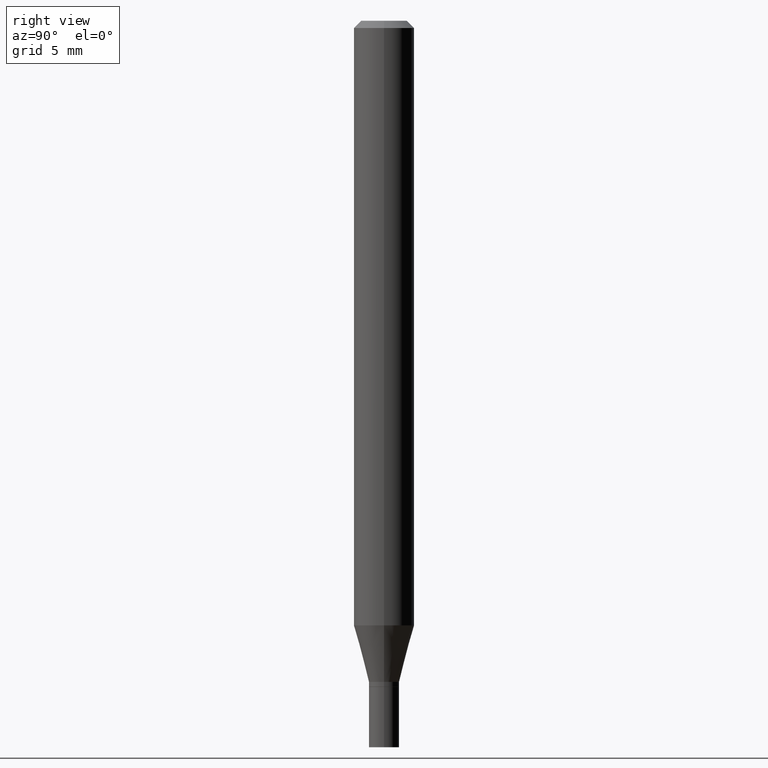
[diagram: clean part render]
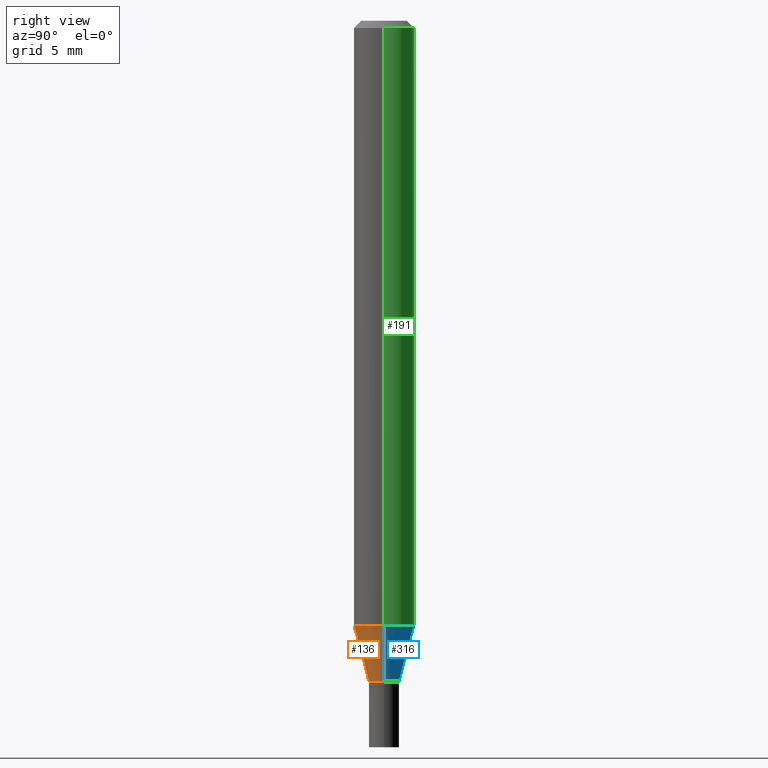
[diagram: same view with three faces highlighted in distinct colors, each labeled with its STEP entity id]
A machine part, right view with three faces highlighted in distinct colors.
Their STEP definitions:

[orange] entity #136 — the highlighted conical surface has half-angle 15 deg.
#9 = AXIS2_PLACEMENT_3D ( 'NONE', #161, #16, #341 ) ;
#12 = CARTESIAN_POINT ( 'NONE',  ( -0.03124999999999966693, -4.229205342785826785E-15, -1.364999999999999991 ) ) ;
#16 = DIRECTION ( 'NONE',  ( -2.445468806185136597E-29, 3.491481338843145583E-15, 1.000000000000000000 ) ) ;
#24 = CARTESIAN_POINT ( 'NONE',  ( 0.03124999999999966693, -4.984089611198587537E-15, -1.364999999999999991 ) ) ;
#32 = DIRECTION ( 'NONE',  ( -0.2588190451025215166, 5.211531920934551042E-15, 0.9659258262890679791 ) ) ;
#36 = EDGE_CURVE ( 'NONE', #49, #143, #144, .T. ) ;
#41 = CARTESIAN_POINT ( 'NONE',  ( 3.052858238161217332E-29, -4.358672472825852637E-15, -1.248373412263471760 ) ) ;
#49 = VERTEX_POINT ( 'NONE', #12 ) ;
#51 = CARTESIAN_POINT ( 'NONE',  ( 3.338064920442711836E-29, -4.765872027520893280E-15, -1.364999999999999991 ) ) ;
#57 = VERTEX_POINT ( 'NONE', #63 ) ;
#63 = CARTESIAN_POINT ( 'NONE',  ( 0.06250000000000000000, -4.795107640181243517E-15, -1.248373412263471760 ) ) ;
#72 = VECTOR ( 'NONE', #32, 39.37007874015748143 ) ;
#78 = ORIENTED_EDGE ( 'NONE', *, *, #349, .F. ) ;
#89 = AXIS2_PLACEMENT_3D ( 'NONE', #41, #179, #329 ) ;
#136 = ADVANCED_FACE ( 'NONE', ( #305 ), #277, .T. ) ;
#143 = VERTEX_POINT ( 'NONE', #24 ) ;
#144 = CIRCLE ( 'NONE', #232, 0.03124999999999966693 ) ;
#153 = CIRCLE ( 'NONE', #89, 0.06250000000000000000 ) ;
#161 = CARTESIAN_POINT ( 'NONE',  ( 3.338064920442711836E-29, -4.765872027520893280E-15, -1.364999999999999991 ) ) ;
#164 = CARTESIAN_POINT ( 'NONE',  ( -0.03124999999999966693, -4.543827422595864339E-15, -1.364999999999999991 ) ) ;
#173 = ORIENTED_EDGE ( 'NONE', *, *, #36, .T. ) ;
#179 = DIRECTION ( 'NONE',  ( -2.445468806185136597E-29, 3.491481338843145583E-15, 1.000000000000000000 ) ) ;
#184 = DIRECTION ( 'NONE',  ( -2.445468806185136597E-29, 3.491481338843145583E-15, 1.000000000000000000 ) ) ;
#187 = ORIENTED_EDGE ( 'NONE', *, *, #299, .F. ) ;
#194 = DIRECTION ( 'NONE',  ( 1.000000000000000000, -6.982962677686274599E-15, 0.000000000000000000 ) ) ;
#199 = VECTOR ( 'NONE', #237, 39.37007874015748143 ) ;
#209 = ORIENTED_EDGE ( 'NONE', *, *, #212, .T. ) ;
#212 = EDGE_CURVE ( 'NONE', #143, #57, #462, .T. ) ;
#232 = AXIS2_PLACEMENT_3D ( 'NONE', #51, #184, #194 ) ;
#237 = DIRECTION ( 'NONE',  ( 0.2588190451025215166, 1.565188264969620784E-15, 0.9659258262890679791 ) ) ;
#247 = LINE ( 'NONE', #164, #72 ) ;
#277 = CONICAL_SURFACE ( 'NONE', #9, 0.03124999999999966693, 0.2617993877991502405 ) ;
#299 = EDGE_CURVE ( 'NONE', #49, #413, #247, .T. ) ;
#305 = FACE_OUTER_BOUND ( 'NONE', #389, .T. ) ;
#327 = CARTESIAN_POINT ( 'NONE',  ( -0.06250000000000000000, -3.914583262975789231E-15, -1.248373412263471760 ) ) ;
#329 = DIRECTION ( 'NONE',  ( 1.000000000000000000, -6.982962677686270655E-15, 0.000000000000000000 ) ) ;
#341 = DIRECTION ( 'NONE',  ( 1.000000000000000000, -6.982962677686274599E-15, 0.000000000000000000 ) ) ;
#349 = EDGE_CURVE ( 'NONE', #413, #57, #153, .T. ) ;
#353 = CARTESIAN_POINT ( 'NONE',  ( 0.03124999999999966693, -4.984089611198587537E-15, -1.364999999999999991 ) ) ;
#389 = EDGE_LOOP ( 'NONE', ( #187, #173, #209, #78 ) ) ;
#413 = VERTEX_POINT ( 'NONE', #327 ) ;
#462 = LINE ( 'NONE', #353, #199 ) ;

[blue] entity #316 — the highlighted conical surface has half-angle 15 deg.
#12 = CARTESIAN_POINT ( 'NONE',  ( -0.03124999999999966693, -4.229205342785826785E-15, -1.364999999999999991 ) ) ;
#24 = CARTESIAN_POINT ( 'NONE',  ( 0.03124999999999966693, -4.984089611198587537E-15, -1.364999999999999991 ) ) ;
#30 = FACE_OUTER_BOUND ( 'NONE', #216, .T. ) ;
#32 = DIRECTION ( 'NONE',  ( -0.2588190451025215166, 5.211531920934551042E-15, 0.9659258262890679791 ) ) ;
#49 = VERTEX_POINT ( 'NONE', #12 ) ;
#57 = VERTEX_POINT ( 'NONE', #63 ) ;
#63 = CARTESIAN_POINT ( 'NONE',  ( 0.06250000000000000000, -4.795107640181243517E-15, -1.248373412263471760 ) ) ;
#67 = CONICAL_SURFACE ( 'NONE', #176, 0.03124999999999966693, 0.2617993877991502405 ) ;
#72 = VECTOR ( 'NONE', #32, 39.37007874015748143 ) ;
#77 = DIRECTION ( 'NONE',  ( 1.000000000000000000, -6.982962677686270655E-15, 0.000000000000000000 ) ) ;
#87 = AXIS2_PLACEMENT_3D ( 'NONE', #429, #344, #110 ) ;
#88 = EDGE_CURVE ( 'NONE', #143, #49, #263, .T. ) ;
#93 = EDGE_CURVE ( 'NONE', #57, #413, #383, .T. ) ;
#105 = DIRECTION ( 'NONE',  ( -2.445468806185136597E-29, 3.491481338843145583E-15, 1.000000000000000000 ) ) ;
#110 = DIRECTION ( 'NONE',  ( 1.000000000000000000, -6.982962677686274599E-15, 0.000000000000000000 ) ) ;
#137 = DIRECTION ( 'NONE',  ( -2.445468806185136597E-29, 3.491481338843145583E-15, 1.000000000000000000 ) ) ;
#143 = VERTEX_POINT ( 'NONE', #24 ) ;
#164 = CARTESIAN_POINT ( 'NONE',  ( -0.03124999999999966693, -4.543827422595864339E-15, -1.364999999999999991 ) ) ;
#176 = AXIS2_PLACEMENT_3D ( 'NONE', #314, #137, #279 ) ;
#199 = VECTOR ( 'NONE', #237, 39.37007874015748143 ) ;
#212 = EDGE_CURVE ( 'NONE', #143, #57, #462, .T. ) ;
#216 = EDGE_LOOP ( 'NONE', ( #301, #318, #451, #448 ) ) ;
#237 = DIRECTION ( 'NONE',  ( 0.2588190451025215166, 1.565188264969620784E-15, 0.9659258262890679791 ) ) ;
#247 = LINE ( 'NONE', #164, #72 ) ;
#263 = CIRCLE ( 'NONE', #87, 0.03124999999999966693 ) ;
#279 = DIRECTION ( 'NONE',  ( 1.000000000000000000, -6.982962677686274599E-15, 0.000000000000000000 ) ) ;
#299 = EDGE_CURVE ( 'NONE', #49, #413, #247, .T. ) ;
#301 = ORIENTED_EDGE ( 'NONE', *, *, #88, .T. ) ;
#314 = CARTESIAN_POINT ( 'NONE',  ( 3.338064920442711836E-29, -4.765872027520893280E-15, -1.364999999999999991 ) ) ;
#316 = ADVANCED_FACE ( 'NONE', ( #30 ), #67, .T. ) ;
#318 = ORIENTED_EDGE ( 'NONE', *, *, #299, .T. ) ;
#327 = CARTESIAN_POINT ( 'NONE',  ( -0.06250000000000000000, -3.914583262975789231E-15, -1.248373412263471760 ) ) ;
#344 = DIRECTION ( 'NONE',  ( -2.445468806185136597E-29, 3.491481338843145583E-15, 1.000000000000000000 ) ) ;
#353 = CARTESIAN_POINT ( 'NONE',  ( 0.03124999999999966693, -4.984089611198587537E-15, -1.364999999999999991 ) ) ;
#383 = CIRCLE ( 'NONE', #400, 0.06250000000000000000 ) ;
#400 = AXIS2_PLACEMENT_3D ( 'NONE', #428, #105, #77 ) ;
#413 = VERTEX_POINT ( 'NONE', #327 ) ;
#428 = CARTESIAN_POINT ( 'NONE',  ( 3.052858238161217332E-29, -4.358672472825852637E-15, -1.248373412263471760 ) ) ;
#429 = CARTESIAN_POINT ( 'NONE',  ( 3.338064920442711836E-29, -4.765872027520893280E-15, -1.364999999999999991 ) ) ;
#448 = ORIENTED_EDGE ( 'NONE', *, *, #212, .F. ) ;
#451 = ORIENTED_EDGE ( 'NONE', *, *, #93, .F. ) ;
#462 = LINE ( 'NONE', #353, #199 ) ;

[green] entity #191 — the highlighted cylindrical surface (edge-blend (fillet) strip) has radius 1.5875 mm, axis along (-0, 0, 1).
#1 = VECTOR ( 'NONE', #310, 39.37007874015748143 ) ;
#31 = AXIS2_PLACEMENT_3D ( 'NONE', #165, #455, #205 ) ;
#35 = ORIENTED_EDGE ( 'NONE', *, *, #166, .F. ) ;
#57 = VERTEX_POINT ( 'NONE', #63 ) ;
#63 = CARTESIAN_POINT ( 'NONE',  ( 0.06250000000000000000, -4.795107640181243517E-15, -1.248373412263471760 ) ) ;
#69 = CARTESIAN_POINT ( 'NONE',  ( 0.06250000000000000000, -4.364351673553916694E-16, 3.047610484872459871E-30 ) ) ;
#77 = DIRECTION ( 'NONE',  ( 1.000000000000000000, -6.982962677686270655E-15, 0.000000000000000000 ) ) ;
#93 = EDGE_CURVE ( 'NONE', #57, #413, #383, .T. ) ;
#98 = DIRECTION ( 'NONE',  ( -2.445468806185136597E-29, 3.491481338843145583E-15, 1.000000000000000000 ) ) ;
#100 = VECTOR ( 'NONE', #206, 39.37007874015748143 ) ;
#105 = DIRECTION ( 'NONE',  ( -2.445468806185136597E-29, 3.491481338843145583E-15, 1.000000000000000000 ) ) ;
#121 = CARTESIAN_POINT ( 'NONE',  ( 3.668203209277705088E-31, -5.237222008264718399E-17, -0.01499999999999999944 ) ) ;
#123 = ORIENTED_EDGE ( 'NONE', *, *, #183, .T. ) ;
#149 = VERTEX_POINT ( 'NONE', #274 ) ;
#156 = EDGE_LOOP ( 'NONE', ( #364, #123, #35, #377 ) ) ;
#165 = CARTESIAN_POINT ( 'NONE',  ( 0.000000000000000000, 0.000000000000000000, 0.000000000000000000 ) ) ;
#166 = EDGE_CURVE ( 'NONE', #149, #437, #339, .T. ) ;
#169 = AXIS2_PLACEMENT_3D ( 'NONE', #121, #98, #235 ) ;
#171 = CYLINDRICAL_SURFACE ( 'NONE', #31, 0.06250000000000000000 ) ;
#183 = EDGE_CURVE ( 'NONE', #413, #437, #378, .T. ) ;
#191 = ADVANCED_FACE ( 'NONE', ( #312 ), #171, .T. ) ;
#205 = DIRECTION ( 'NONE',  ( 1.000000000000000000, -6.982962677686266711E-15, 4.876176775795935793E-29 ) ) ;
#206 = DIRECTION ( 'NONE',  ( -2.445468806185136877E-29, 3.491481338843145188E-15, 1.000000000000000000 ) ) ;
#235 = DIRECTION ( 'NONE',  ( 1.000000000000000000, -6.982962677686266711E-15, 0.000000000000000000 ) ) ;
#274 = CARTESIAN_POINT ( 'NONE',  ( 0.06250000000000000000, -4.888073874380388472E-16, -0.01499999999999999944 ) ) ;
#310 = DIRECTION ( 'NONE',  ( -2.445468806185136877E-29, 3.491481338843145188E-15, 1.000000000000000000 ) ) ;
#312 = FACE_OUTER_BOUND ( 'NONE', #156, .T. ) ;
#324 = EDGE_CURVE ( 'NONE', #57, #149, #460, .T. ) ;
#327 = CARTESIAN_POINT ( 'NONE',  ( -0.06250000000000000000, -3.914583262975789231E-15, -1.248373412263471760 ) ) ;
#339 = CIRCLE ( 'NONE', #169, 0.06250000000000000000 ) ;
#364 = ORIENTED_EDGE ( 'NONE', *, *, #93, .T. ) ;
#377 = ORIENTED_EDGE ( 'NONE', *, *, #324, .F. ) ;
#378 = LINE ( 'NONE', #393, #1 ) ;
#383 = CIRCLE ( 'NONE', #400, 0.06250000000000000000 ) ;
#387 = CARTESIAN_POINT ( 'NONE',  ( -0.06250000000000000000, -1.761433136604187439E-15, -0.01499999999999999944 ) ) ;
#393 = CARTESIAN_POINT ( 'NONE',  ( -0.06250000000000000000, 4.440892098500626162E-16, -3.074334431409316114E-30 ) ) ;
#400 = AXIS2_PLACEMENT_3D ( 'NONE', #428, #105, #77 ) ;
#413 = VERTEX_POINT ( 'NONE', #327 ) ;
#428 = CARTESIAN_POINT ( 'NONE',  ( 3.052858238161217332E-29, -4.358672472825852637E-15, -1.248373412263471760 ) ) ;
#437 = VERTEX_POINT ( 'NONE', #387 ) ;
#455 = DIRECTION ( 'NONE',  ( -2.445468806185136597E-29, 3.491481338843145583E-15, 1.000000000000000000 ) ) ;
#460 = LINE ( 'NONE', #69, #100 ) ;